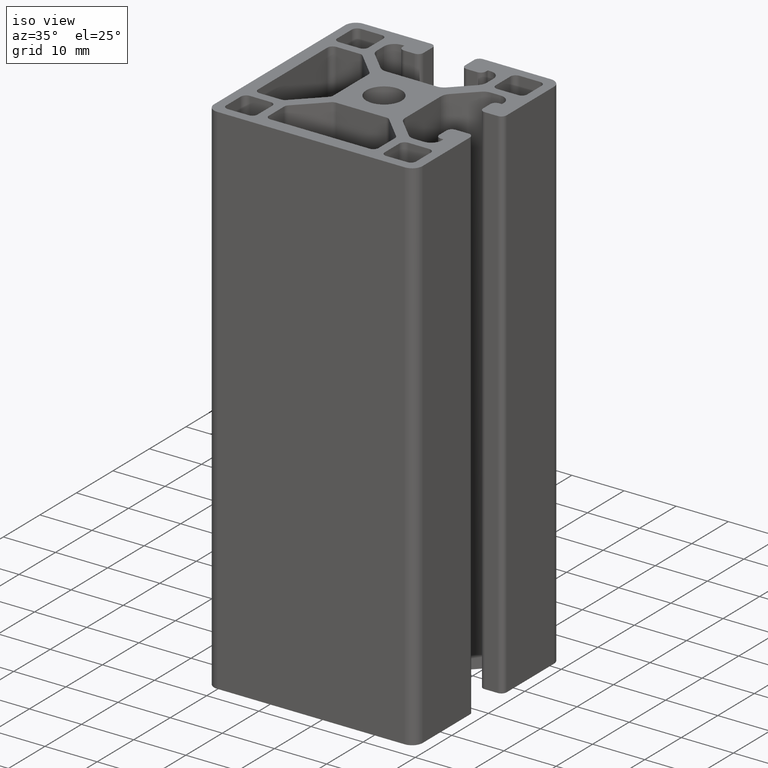
[diagram: clean part render]
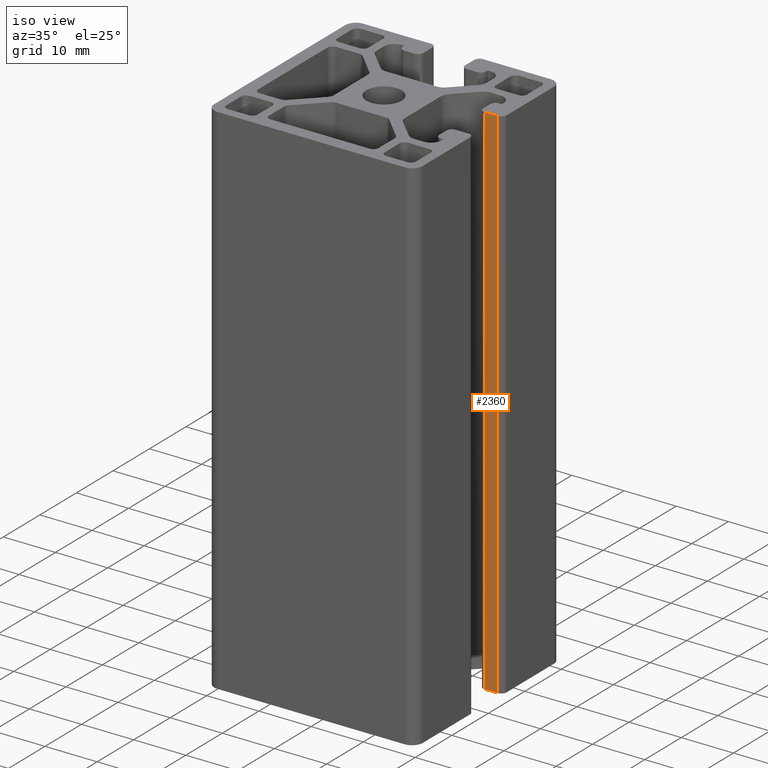
[diagram: same view with one face highlighted and labeled with its STEP entity id]
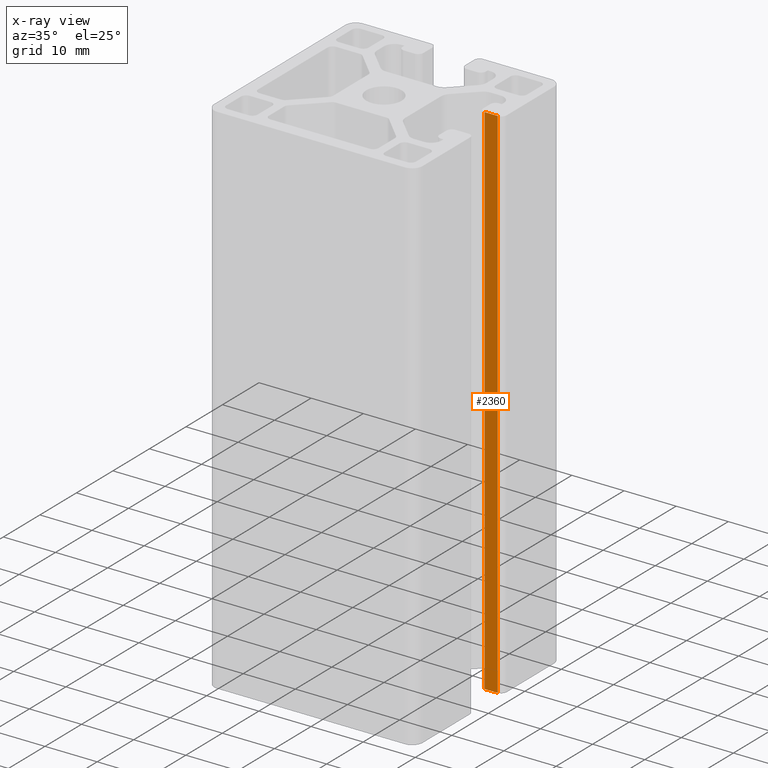
[diagram: x-ray of the same camera — body ghosted, the highlighted face saturated]
A machine part, iso view. The second image highlights one B-rep face of the part: STEP entity #2360.
The next image is the same camera in x-ray: the body ghosted, the highlighted face saturated — about 0% of this face is hidden behind the body in this view.
In plain terms, the highlighted planar face has unit normal (0, 1, 0).
Its self-contained STEP definition (entity closure, byte-faithful):
#289=FACE_OUTER_BOUND('',#409,.T.);
#409=EDGE_LOOP('',(#1860,#1861,#1862,#1863));
#630=LINE('',#3863,#866);
#632=LINE('',#3869,#868);
#633=LINE('',#3871,#869);
#634=LINE('',#3872,#870);
#866=VECTOR('',#3154,100.);
#868=VECTOR('',#3160,2.5000039918977);
#869=VECTOR('',#3161,100.);
#870=VECTOR('',#3162,2.5000039918977);
#1104=VERTEX_POINT('',#3859);
#1106=VERTEX_POINT('',#3862);
#1108=VERTEX_POINT('',#3868);
#1109=VERTEX_POINT('',#3870);
#1423=EDGE_CURVE('',#1106,#1104,#630,.T.);
#1426=EDGE_CURVE('',#1108,#1104,#632,.T.);
#1427=EDGE_CURVE('',#1109,#1108,#633,.T.);
#1428=EDGE_CURVE('',#1106,#1109,#634,.T.);
#1860=ORIENTED_EDGE('',*,*,#1426,.F.);
#1861=ORIENTED_EDGE('',*,*,#1427,.F.);
#1862=ORIENTED_EDGE('',*,*,#1428,.F.);
#1863=ORIENTED_EDGE('',*,*,#1423,.T.);
#2254=PLANE('',#2569);
#2360=ADVANCED_FACE('',(#289),#2254,.F.);
#2569=AXIS2_PLACEMENT_3D('',#3867,#3158,#3159);
#3154=DIRECTION('',(0.,0.,1.));
#3158=DIRECTION('center_axis',(1.77635400299087E-15,1.,0.));
#3159=DIRECTION('ref_axis',(-1.,1.77635683940025E-15,0.));
#3160=DIRECTION('',(1.,-1.77635400299087E-15,0.));
#3161=DIRECTION('',(0.,0.,1.));
#3162=DIRECTION('',(-1.,1.77635400299087E-15,0.));
#3859=CARTESIAN_POINT('',(19.0000019959489,3.99999999999999,100.));
#3862=CARTESIAN_POINT('',(19.0000019959489,3.99999999999999,0.));
#3863=CARTESIAN_POINT('',(19.0000019959489,3.99999999999999,0.));
#3867=CARTESIAN_POINT('Origin',(19.0000019959489,3.99999999999999,0.));
#3868=CARTESIAN_POINT('',(16.4999980040512,3.99999999999999,100.));
#3869=CARTESIAN_POINT('',(9.50000099797443,4.00000000000001,100.));
#3870=CARTESIAN_POINT('',(16.4999980040512,3.99999999999999,0.));
#3871=CARTESIAN_POINT('',(16.4999980040512,3.99999999999999,0.));
#3872=CARTESIAN_POINT('',(9.50000099797443,4.00000000000001,0.));